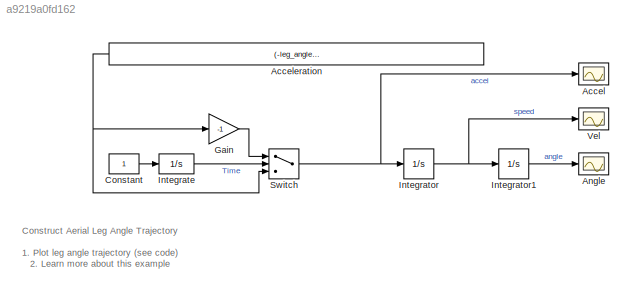
MODEL slx_a9219a0fd162
KIND model
CONFIG AbsTol = auto
CONFIG EnableMultiTasking = on
CONFIG FixedStep = auto
CONFIG InitFcn = if (~exist('T_cg') || ~exist('T_stance'))\n  sm_robot_run_4legs_param_def_load(bdroot)\nend
CONFIG MaxStep = 0.001
CONFIG MinStep = auto
CONFIG RelTol = 1e-3
CONFIG SampleTimeConstraint = Unconstrained
CONFIG SolverName = ode45
CONFIG StartTime = 0.0
CONFIG StopTime = 2*T_cg-T_stance
BLOCK [Scope] Accel
  Floating = off
  NumInputPorts = 1
  Ports = [1]
  ScopeSpecificationString = Simulink.scopes.TimeScopeBlockCfg('CurrentConfiguration', extmgr.ConfigurationSet(extmgr.Configuration('Core','General UI',true),extmgr.Configuration('Core','Source UI',true),extmgr.Configuration('Sources','WiredSimulink',true,'DataLoggingVariableName','ScopeData2','DataLoggingSaveFormat','StructureWithTime','DataLoggingLimitDataPoints',true,'DataLoggingDecimation','1','DataLoggingDecimateData',tr...<+1709ch>
BLOCK [Constant] Acceleration
  Value = (-leg_angle0-(T_cg-T_stance/2)*leg_vel0)/(0.5*(T_cg-T_stance/2)^2)
BLOCK [Scope] Angle
  Floating = off
  NumInputPorts = 1
  Ports = [1]
  ScopeSpecificationString = Simulink.scopes.TimeScopeBlockCfg('CurrentConfiguration', extmgr.ConfigurationSet(extmgr.Configuration('Core','General UI',true),extmgr.Configuration('Core','Source UI',true),extmgr.Configuration('Sources','WiredSimulink',true,'DataLogging',true,'DataLoggingVariableName','aerial_phase_angle','DataLoggingSaveFormat','StructureWithTime','DataLoggingDecimation','1','DataLoggingDecimateData',true),ext...<+1646ch>
BLOCK [Constant] Constant
BLOCK [Gain] Gain
  Gain = -1
BLOCK [Integrator] Integrate
  Ports = [1, 1]
BLOCK [Integrator] Integrator
  AttributesFormatString = %<InitialCondition>
  InitialCondition = leg_vel0
  Ports = [1, 1]
BLOCK [Integrator] Integrator1
  AttributesFormatString = %<InitialCondition>
  InitialCondition = leg_angle0
  Ports = [1, 1]
BLOCK [Switch] Switch
  AttributesFormatString = Threshold = %<Threshold>
  InputSameDT = off
  SaturateOnIntegerOverflow = off
  Threshold = (2*T_cg-T_stance)/2
BLOCK [Scope] Vel
  Floating = off
  NumInputPorts = 1
  Ports = [1]
  ScopeSpecificationString = Simulink.scopes.TimeScopeBlockCfg('CurrentConfiguration', extmgr.ConfigurationSet(extmgr.Configuration('Core','General UI',true),extmgr.Configuration('Core','Source UI',true),extmgr.Configuration('Sources','WiredSimulink',true,'DataLoggingVariableName','ScopeData1','DataLoggingSaveFormat','StructureWithTime','DataLoggingLimitDataPoints',true,'DataLoggingDecimation','1','DataLoggingDecimateData',tr...<+1657ch>
ANNOTATION (root): 1. Plot leg angle trajectory ( see code ) 2. Learn more about this example
ANNOTATION (root): Construct Aerial Leg Angle Trajectory
NET Acceleration:1 -> Gain:1, Switch:3
LINE Constant:1 -> Integrate:1
LINE Gain:1 -> Switch:1
LINE Integrate:1 -> Switch:2
LINE Integrator1:1 -> Angle:1
NET Integrator:1 -> Integrator1:1, Vel:1
NET Switch:1 -> Accel:1, Integrator:1
note: NET lines group one-source signal fan-out (src -> all destinations, sorted); 1:1 wires keep LINE
